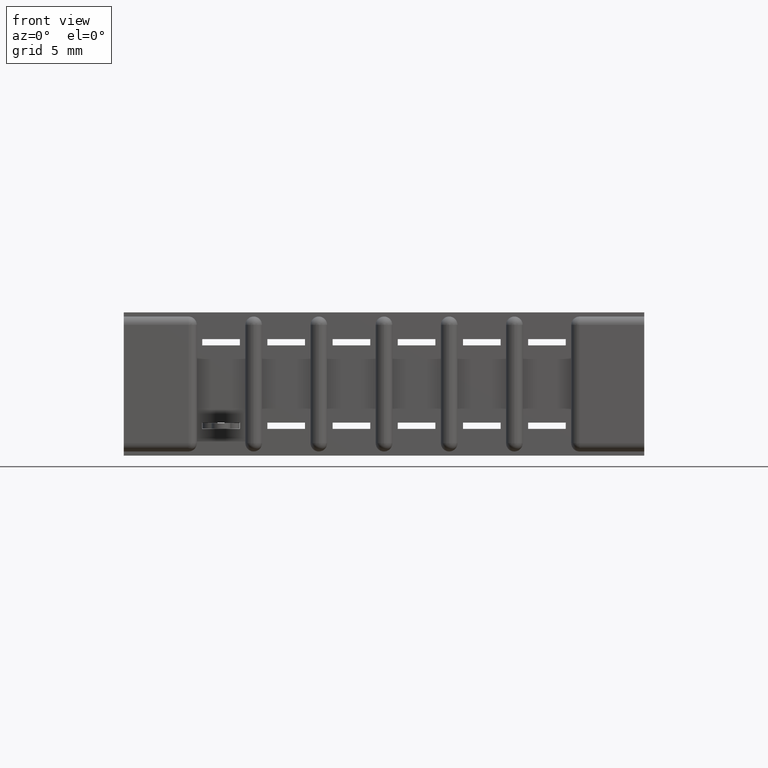
[diagram: clean part render]
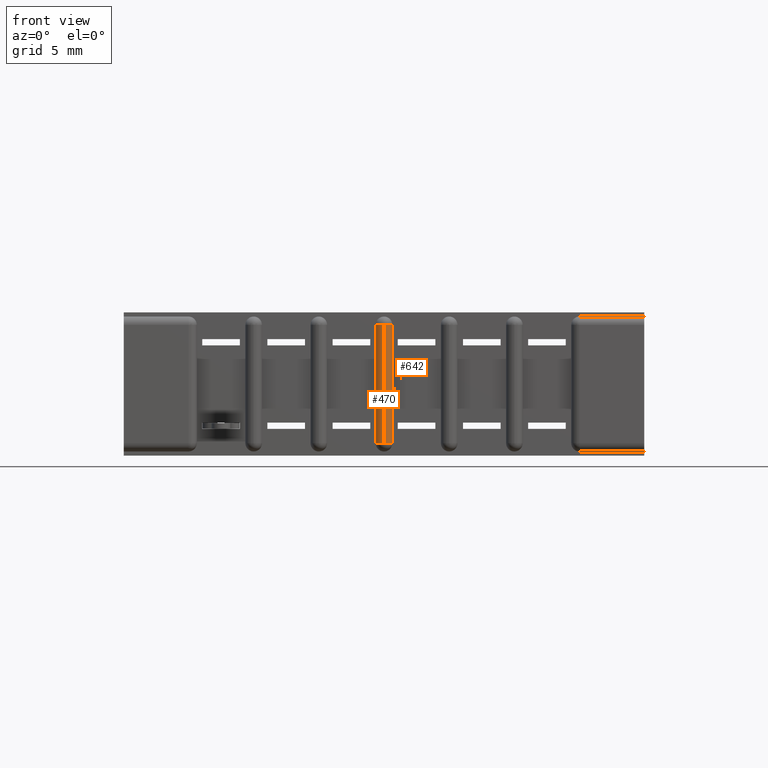
[diagram: same view with one multi-face feature highlighted, each face labeled with its STEP entity id]
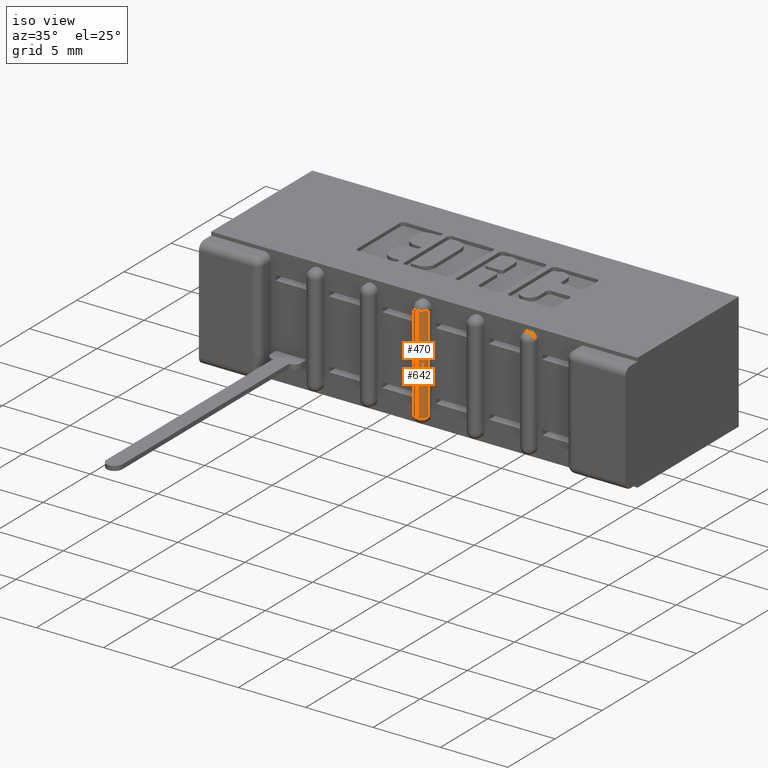
[diagram: same view with one multi-face feature highlighted, each face labeled with its STEP entity id]
A machine part, front view. The highlighted faces form ONE feature: a constant-radius fillet chain: 2 tangent blend faces with common blend radius 0.508 mm. The faces share edges in the B-rep.
A second angle (iso view) of the same feature is appended — it is thin or edge-on in the first view.
Their STEP definitions:
[1] entity #470 (Cylinder):
#36 = CYLINDRICAL_SURFACE ( 'NONE', #8150, 0.02000000000000005900 ) ;
#39 = ORIENTED_EDGE ( 'NONE', *, *, #463, .T. ) ;
#63 = VERTEX_POINT ( 'NONE', #7514 ) ;
#114 = ORIENTED_EDGE ( 'NONE', *, *, #458, .T. ) ;
#142 = FACE_OUTER_BOUND ( 'NONE', #5383, .T. ) ;
#155 = VECTOR ( 'NONE', #4808, 39.37007874015748100 ) ;
#179 = CARTESIAN_POINT ( 'NONE',  ( 0.9210000000000006000, 0.04000000000000000100, -0.3430000000000000800 ) ) ;
#197 = LINE ( 'NONE', #5909, #155 ) ;
#225 = CIRCLE ( 'NONE', #8178, 0.02000000000000005900 ) ;
#228 = DIRECTION ( 'NONE',  ( -1.991142852524973500E-015, 0.0000000000000000000, 1.000000000000000000 ) ) ;
#387 = CIRCLE ( 'NONE', #8205, 0.02000000000000005900 ) ;
#432 = EDGE_CURVE ( 'NONE', #7830, #4077, #387, .T. ) ;
#458 = EDGE_CURVE ( 'NONE', #6206, #7830, #197, .T. ) ;
#463 = EDGE_CURVE ( 'NONE', #63, #6206, #225, .T. ) ;
#470 = ADVANCED_FACE ( 'NONE', ( #142 ), #36, .T. ) ;
#2634 = EDGE_CURVE ( 'NONE', #63, #4077, #8958, .T. ) ;
#2670 = CARTESIAN_POINT ( 'NONE',  ( 0.9209999999999998200, 0.04000000000000000100, -0.02999999999999930500 ) ) ;
#3394 = DIRECTION ( 'NONE',  ( 1.000000000000000000, 0.0000000000000000000, 3.414809992080318900E-015 ) ) ;
#3836 = ORIENTED_EDGE ( 'NONE', *, *, #432, .T. ) ;
#4068 = ORIENTED_EDGE ( 'NONE', *, *, #2634, .F. ) ;
#4077 = VERTEX_POINT ( 'NONE', #8889 ) ;
#4284 = DIRECTION ( 'NONE',  ( 0.0000000000000000000, 0.0000000000000000000, 1.000000000000000000 ) ) ;
#4808 = DIRECTION ( 'NONE',  ( -1.592914282019978400E-015, 0.0000000000000000000, 1.000000000000000000 ) ) ;
#4972 = CARTESIAN_POINT ( 'NONE',  ( 0.9210000000000006000, 0.04000000000000000100, -0.3130000000000007200 ) ) ;
#5383 = EDGE_LOOP ( 'NONE', ( #3836, #4068, #39, #114 ) ) ;
#5621 = DIRECTION ( 'NONE',  ( 1.000000000000000000, 0.0000000000000000000, 0.0000000000000000000 ) ) ;
#5793 = VECTOR ( 'NONE', #8133, 39.37007874015748100 ) ;
#5909 = CARTESIAN_POINT ( 'NONE',  ( 0.9209999999999998200, 0.02000000000000000000, -0.02999999999999927000 ) ) ;
#6050 = CARTESIAN_POINT ( 'NONE',  ( 0.9210000000000000400, 0.02000000000000000000, -0.02999999999999923200 ) ) ;
#6206 = VERTEX_POINT ( 'NONE', #6490 ) ;
#6490 = CARTESIAN_POINT ( 'NONE',  ( 0.9210000000000006000, 0.02000000000000000000, -0.3130000000000006700 ) ) ;
#7514 = CARTESIAN_POINT ( 'NONE',  ( 0.9010000000000004700, 0.04000000000000000100, -0.3130000000000007200 ) ) ;
#7830 = VERTEX_POINT ( 'NONE', #6050 ) ;
#8039 = CARTESIAN_POINT ( 'NONE',  ( 0.9009999999999999100, 0.04000000000000000100, -0.02999999999999930800 ) ) ;
#8133 = DIRECTION ( 'NONE',  ( -1.991142852524973500E-015, -0.0000000000000000000, 1.000000000000000000 ) ) ;
#8150 = AXIS2_PLACEMENT_3D ( 'NONE', #179, #228, #3394 ) ;
#8178 = AXIS2_PLACEMENT_3D ( 'NONE', #4972, #4284, #5621 ) ;
#8205 = AXIS2_PLACEMENT_3D ( 'NONE', #2670, #8688, #8572 ) ;
#8572 = DIRECTION ( 'NONE',  ( -1.000000000000000000, 0.0000000000000000000, 1.707404996040159400E-015 ) ) ;
#8688 = DIRECTION ( 'NONE',  ( -1.707404996040229400E-015, -0.0000000000000000000, -1.000000000000000000 ) ) ;
#8889 = CARTESIAN_POINT ( 'NONE',  ( 0.9009999999999999100, 0.04000000000000000100, -0.02999999999999927000 ) ) ;
#8958 = LINE ( 'NONE', #8039, #5793 ) ;
[2] entity #642 (Cylinder):
#30 = ORIENTED_EDGE ( 'NONE', *, *, #458, .F. ) ;
#155 = VECTOR ( 'NONE', #4808, 39.37007874015748100 ) ;
#185 = CIRCLE ( 'NONE', #8168, 0.02000000000000005900 ) ;
#197 = LINE ( 'NONE', #5909, #155 ) ;
#275 = EDGE_CURVE ( 'NONE', #2693, #5310, #1120, .T. ) ;
#411 = EDGE_CURVE ( 'NONE', #2693, #7830, #559, .T. ) ;
#454 = EDGE_CURVE ( 'NONE', #5310, #6206, #185, .T. ) ;
#458 = EDGE_CURVE ( 'NONE', #6206, #7830, #197, .T. ) ;
#559 = CIRCLE ( 'NONE', #8229, 0.02000000000000005900 ) ;
#642 = ADVANCED_FACE ( 'NONE', ( #7755 ), #5918, .T. ) ;
#1120 = LINE ( 'NONE', #3544, #1147 ) ;
#1147 = VECTOR ( 'NONE', #4441, 39.37007874015748100 ) ;
#1636 = DIRECTION ( 'NONE',  ( -1.000000000000000000, 0.0000000000000000000, 0.0000000000000000000 ) ) ;
#1661 = DIRECTION ( 'NONE',  ( 0.0000000000000000000, -0.0000000000000000000, -1.000000000000000000 ) ) ;
#1662 = DIRECTION ( 'NONE',  ( 1.592914282019978600E-015, 0.0000000000000000000, -1.000000000000000000 ) ) ;
#2693 = VERTEX_POINT ( 'NONE', #8422 ) ;
#2731 = DIRECTION ( 'NONE',  ( -1.000000000000000000, 0.0000000000000000000, 0.0000000000000000000 ) ) ;
#3544 = CARTESIAN_POINT ( 'NONE',  ( 0.9410000000000003900, 0.04000000000000000100, -0.3130000000000007200 ) ) ;
#4076 = EDGE_LOOP ( 'NONE', ( #5651, #5789, #5800, #30 ) ) ;
#4441 = DIRECTION ( 'NONE',  ( 1.592914282019978400E-015, -0.0000000000000000000, -1.000000000000000000 ) ) ;
#4808 = DIRECTION ( 'NONE',  ( -1.592914282019978400E-015, 0.0000000000000000000, 1.000000000000000000 ) ) ;
#5054 = CARTESIAN_POINT ( 'NONE',  ( 0.9210000000000003700, 0.04000000000000000100, -0.3430000000000000300 ) ) ;
#5310 = VERTEX_POINT ( 'NONE', #6997 ) ;
#5651 = ORIENTED_EDGE ( 'NONE', *, *, #454, .F. ) ;
#5789 = ORIENTED_EDGE ( 'NONE', *, *, #275, .F. ) ;
#5800 = ORIENTED_EDGE ( 'NONE', *, *, #411, .T. ) ;
#5909 = CARTESIAN_POINT ( 'NONE',  ( 0.9209999999999998200, 0.02000000000000000000, -0.02999999999999927000 ) ) ;
#5918 = CYLINDRICAL_SURFACE ( 'NONE', #7977, 0.02000000000000005900 ) ;
#6050 = CARTESIAN_POINT ( 'NONE',  ( 0.9210000000000000400, 0.02000000000000000000, -0.02999999999999923200 ) ) ;
#6206 = VERTEX_POINT ( 'NONE', #6490 ) ;
#6490 = CARTESIAN_POINT ( 'NONE',  ( 0.9210000000000006000, 0.02000000000000000000, -0.3130000000000006700 ) ) ;
#6997 = CARTESIAN_POINT ( 'NONE',  ( 0.9410000000000002800, 0.04000000000000000100, -0.3130000000000007200 ) ) ;
#7300 = DIRECTION ( 'NONE',  ( -1.000000000000000000, 0.0000000000000000000, -1.707404996040159400E-015 ) ) ;
#7755 = FACE_OUTER_BOUND ( 'NONE', #4076, .T. ) ;
#7830 = VERTEX_POINT ( 'NONE', #6050 ) ;
#7836 = CARTESIAN_POINT ( 'NONE',  ( 0.9210000000000003700, 0.04000000000000000100, -0.3130000000000007200 ) ) ;
#7977 = AXIS2_PLACEMENT_3D ( 'NONE', #5054, #1662, #2731 ) ;
#8168 = AXIS2_PLACEMENT_3D ( 'NONE', #7836, #1661, #1636 ) ;
#8229 = AXIS2_PLACEMENT_3D ( 'NONE', #8332, #8326, #7300 ) ;
#8326 = DIRECTION ( 'NONE',  ( 1.707404996040159200E-015, 6.996556369206972900E-029, -1.000000000000000000 ) ) ;
#8332 = CARTESIAN_POINT ( 'NONE',  ( 0.9209999999999990400, 0.04000000000000000100, -0.02999999999999930500 ) ) ;
#8422 = CARTESIAN_POINT ( 'NONE',  ( 0.9409999999999997300, 0.04000000000000000100, -0.02999999999999927000 ) ) ;